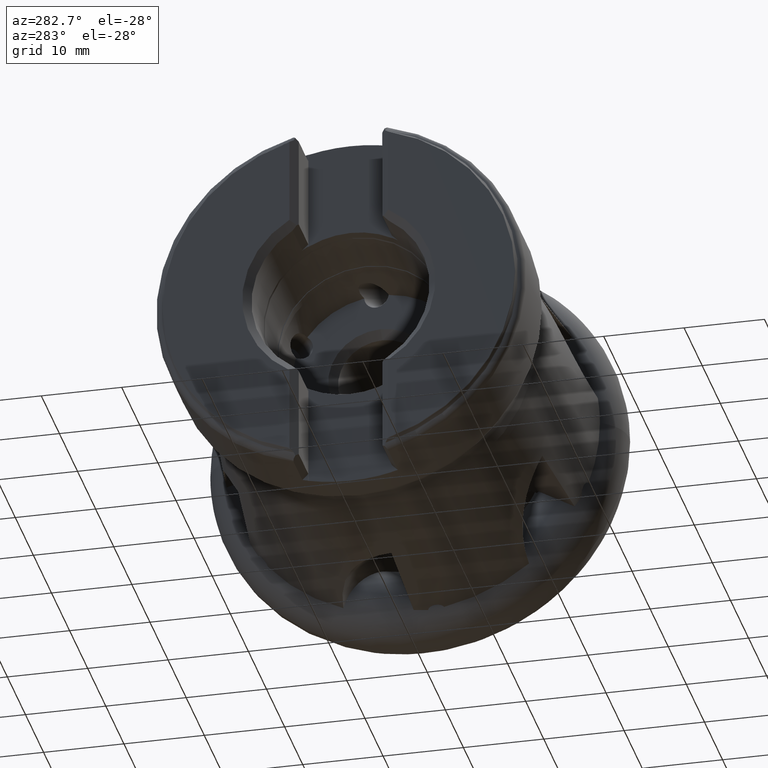
[diagram: clean part render]
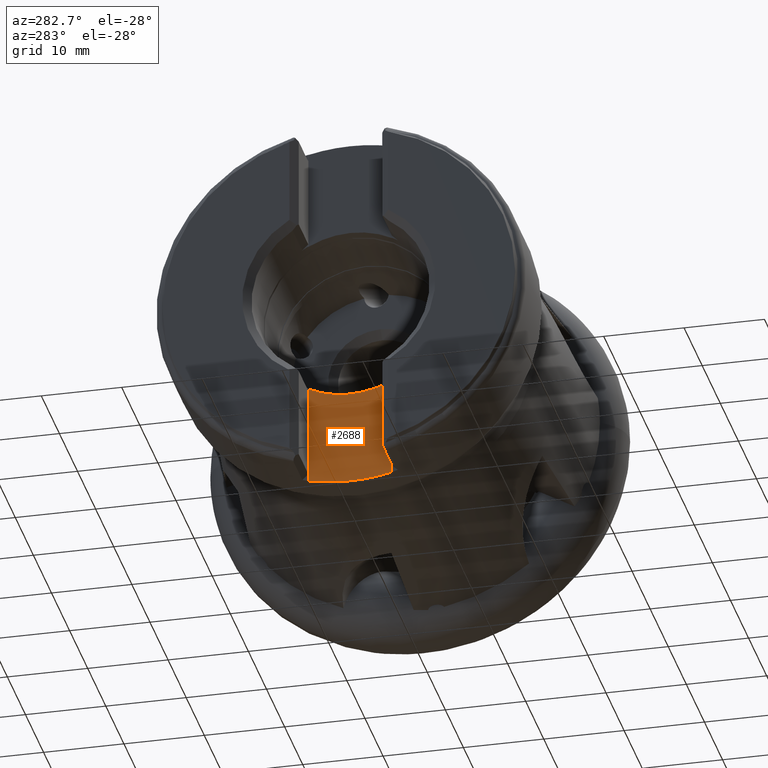
[diagram: same view with one face highlighted and labeled with its STEP entity id]
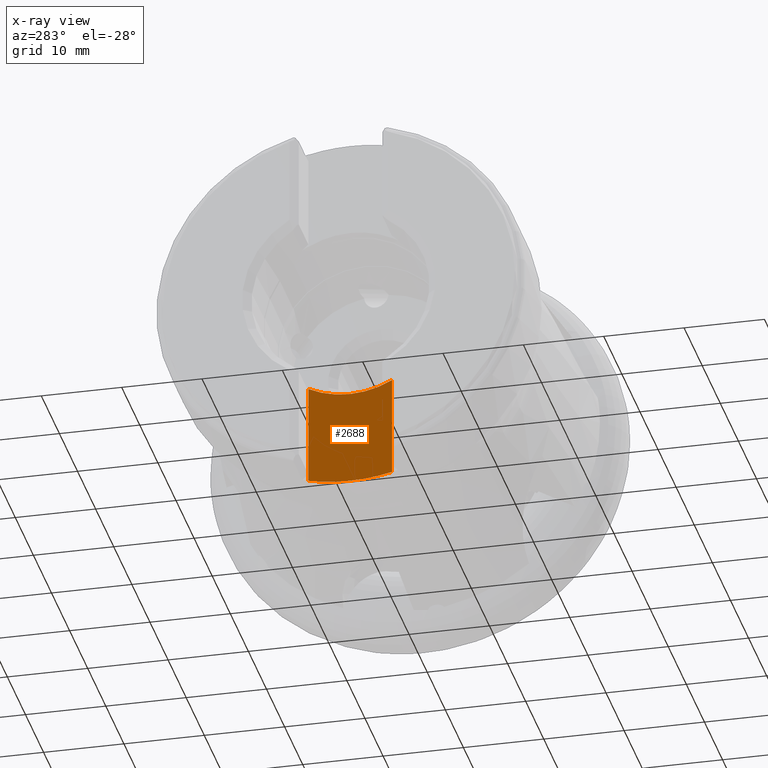
[diagram: x-ray of the same camera — body ghosted, the highlighted face saturated]
A machine part, auxiliary view. The second image highlights one B-rep face of the part: STEP entity #2688.
The next image is the same camera in x-ray: the body ghosted, the highlighted face saturated — about 0% of this face is hidden behind the body in this view.
In plain terms, the highlighted planar face has unit normal (1, 0, 0).
Its self-contained STEP definition (entity closure, byte-faithful):
#327 = ORIENTED_EDGE ( 'NONE', *, *, #1834, .T. ) ;
#328 = ORIENTED_EDGE ( 'NONE', *, *, #3254, .T. ) ;
#329 = ORIENTED_EDGE ( 'NONE', *, *, #3372, .T. ) ;
#330 = ORIENTED_EDGE ( 'NONE', *, *, #1845, .F. ) ;
#331 = ORIENTED_EDGE ( 'NONE', *, *, #3241, .F. ) ;
#332 = ORIENTED_EDGE ( 'NONE', *, *, #4641, .F. ) ;
#813 = EDGE_LOOP ( 'NONE', ( #327, #328, #329, #330, #331, #332 ) ) ;
#1489 = CARTESIAN_POINT ( 'NONE',  ( -42.54999999999999700, -5.200000000000003700, -30.00000000000000000 ) ) ;
#1490 = DIRECTION ( 'NONE',  ( -0.0000000000000000000, -0.0000000000000000000, 1.000000000000000000 ) ) ;
#1834 = EDGE_CURVE ( 'NONE', #2082, #2036, #4855, .T. ) ;
#1845 = EDGE_CURVE ( 'NONE', #2042, #7446, #4869, .T. ) ;
#2036 = VERTEX_POINT ( 'NONE', #5131 ) ;
#2042 = VERTEX_POINT ( 'NONE', #5137 ) ;
#2082 = VERTEX_POINT ( 'NONE', #5177 ) ;
#2688 = ADVANCED_FACE ( 'NONE', ( #4935 ), #6533, .F. ) ;
#3038 = VERTEX_POINT ( 'NONE', #3890 ) ;
#3241 = EDGE_CURVE ( 'NONE', #7464, #2042, #4331, .T. ) ;
#3254 = EDGE_CURVE ( 'NONE', #2036, #3038, #4341, .T. ) ;
#3372 = EDGE_CURVE ( 'NONE', #3038, #7446, #4445, .T. ) ;
#3890 = CARTESIAN_POINT ( 'NONE',  ( -42.54999999999999700, -5.200000000000003700, -22.40446384094025900 ) ) ;
#4011 = CARTESIAN_POINT ( 'NONE',  ( -42.54999999999999700, 0.0000000000000000000, 0.0000000000000000000 ) ) ;
#4012 = DIRECTION ( 'NONE',  ( -1.000000000000000000, -0.0000000000000000000, -0.0000000000000000000 ) ) ;
#4013 = DIRECTION ( 'NONE',  ( 0.0000000000000000000, 1.776356839400250500E-015, -1.000000000000000000 ) ) ;
#4050 = CARTESIAN_POINT ( 'NONE',  ( -42.54999999999999700, 0.0000000000000000000, 0.0000000000000000000 ) ) ;
#4051 = DIRECTION ( 'NONE',  ( -1.000000000000000000, -0.0000000000000000000, -0.0000000000000000000 ) ) ;
#4052 = DIRECTION ( 'NONE',  ( 0.0000000000000000000, 0.0000000000000000000, -1.000000000000000000 ) ) ;
#4331 = CIRCLE ( 'NONE', #6370, 11.07499999999999400 ) ;
#4341 = CIRCLE ( 'NONE', #6377, 22.99999999999999300 ) ;
#4445 = LINE ( 'NONE', #1489, #4448 ) ;
#4448 = VECTOR ( 'NONE', #1490, 1000.000000000000000 ) ;
#4515 = LINE ( 'NONE', #6695, #4518 ) ;
#4518 = VECTOR ( 'NONE', #6696, 1000.000000000000000 ) ;
#4641 = EDGE_CURVE ( 'NONE', #2082, #7464, #4515, .T. ) ;
#4855 = CIRCLE ( 'NONE', #7512, 22.99999999999999300 ) ;
#4869 = CIRCLE ( 'NONE', #7517, 11.07499999999999400 ) ;
#4935 = FACE_OUTER_BOUND ( 'NONE', #813, .T. ) ;
#5131 = CARTESIAN_POINT ( 'NONE',  ( -42.54999999999999700, 0.0000000000000000000, -22.99999999999999300 ) ) ;
#5137 = CARTESIAN_POINT ( 'NONE',  ( -42.54999999999999700, 0.0000000000000000000, -11.07499999999999400 ) ) ;
#5177 = CARTESIAN_POINT ( 'NONE',  ( -42.54999999999999700, 5.199999999999994000, -22.40446384094026300 ) ) ;
#5883 = CARTESIAN_POINT ( 'NONE',  ( -42.54999999999999700, 0.0000000000000000000, 0.0000000000000000000 ) ) ;
#5884 = DIRECTION ( 'NONE',  ( -1.000000000000000000, -0.0000000000000000000, -0.0000000000000000000 ) ) ;
#5885 = DIRECTION ( 'NONE',  ( 0.0000000000000000000, 2.664535259100375300E-015, -1.000000000000000000 ) ) ;
#5911 = CARTESIAN_POINT ( 'NONE',  ( -42.54999999999999700, 0.0000000000000000000, 0.0000000000000000000 ) ) ;
#5912 = DIRECTION ( 'NONE',  ( -1.000000000000000000, -0.0000000000000000000, -0.0000000000000000000 ) ) ;
#5913 = DIRECTION ( 'NONE',  ( 0.0000000000000000000, 0.0000000000000000000, -1.000000000000000000 ) ) ;
#6370 = AXIS2_PLACEMENT_3D ( 'NONE', #4011, #4012, #4013 ) ;
#6377 = AXIS2_PLACEMENT_3D ( 'NONE', #4050, #4051, #4052 ) ;
#6533 = PLANE ( 'NONE',  #7546 ) ;
#6534 = CARTESIAN_POINT ( 'NONE',  ( -42.54999999999999700, 5.199999999999994000, -30.00000000000000000 ) ) ;
#6539 = DIRECTION ( 'NONE',  ( 1.000000000000000000, 0.0000000000000000000, 0.0000000000000000000 ) ) ;
#6540 = DIRECTION ( 'NONE',  ( 0.0000000000000000000, 0.0000000000000000000, -1.000000000000000000 ) ) ;
#6695 = CARTESIAN_POINT ( 'NONE',  ( -42.54999999999999700, 5.199999999999994000, -30.00000000000000000 ) ) ;
#6696 = DIRECTION ( 'NONE',  ( -0.0000000000000000000, -0.0000000000000000000, 1.000000000000000000 ) ) ;
#7399 = CARTESIAN_POINT ( 'NONE',  ( -42.54999999999999700, -5.200000000000003700, -9.778324242936509600 ) ) ;
#7415 = CARTESIAN_POINT ( 'NONE',  ( -42.54999999999999700, 5.199999999999994000, -9.778324242936514900 ) ) ;
#7446 = VERTEX_POINT ( 'NONE', #7399 ) ;
#7464 = VERTEX_POINT ( 'NONE', #7415 ) ;
#7512 = AXIS2_PLACEMENT_3D ( 'NONE', #5883, #5884, #5885 ) ;
#7517 = AXIS2_PLACEMENT_3D ( 'NONE', #5911, #5912, #5913 ) ;
#7546 = AXIS2_PLACEMENT_3D ( 'NONE', #6534, #6539, #6540 ) ;